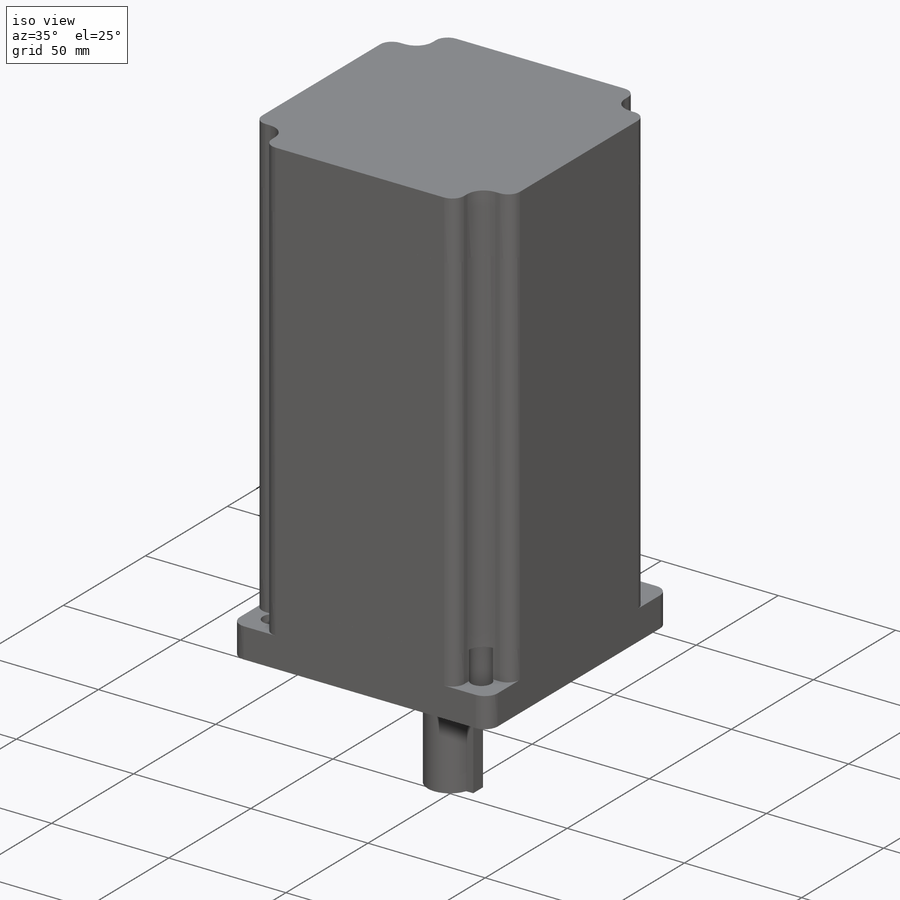
[diagram: iso view]
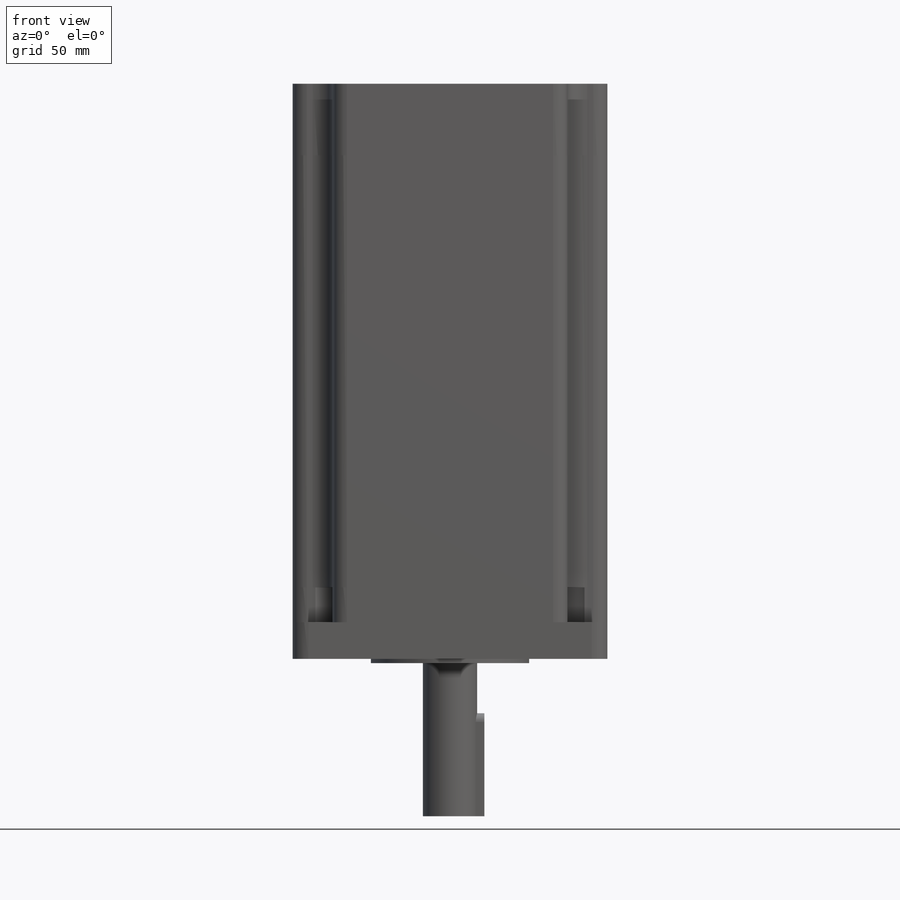
[diagram: front view]
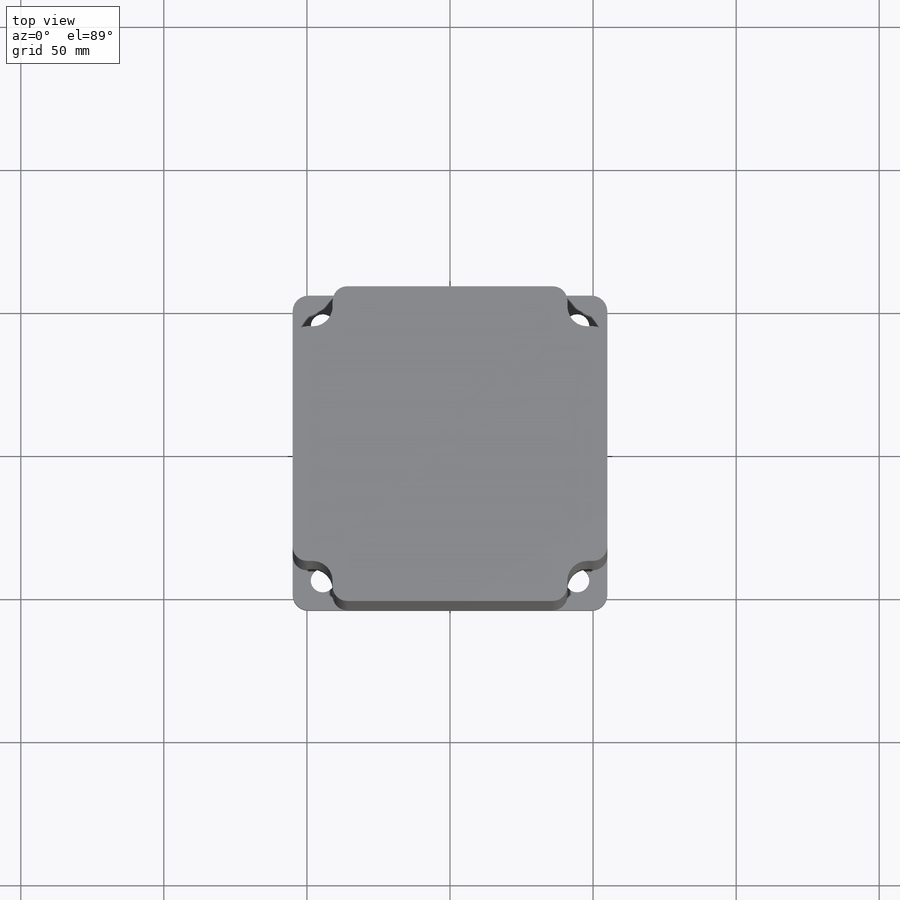
[diagram: top view]
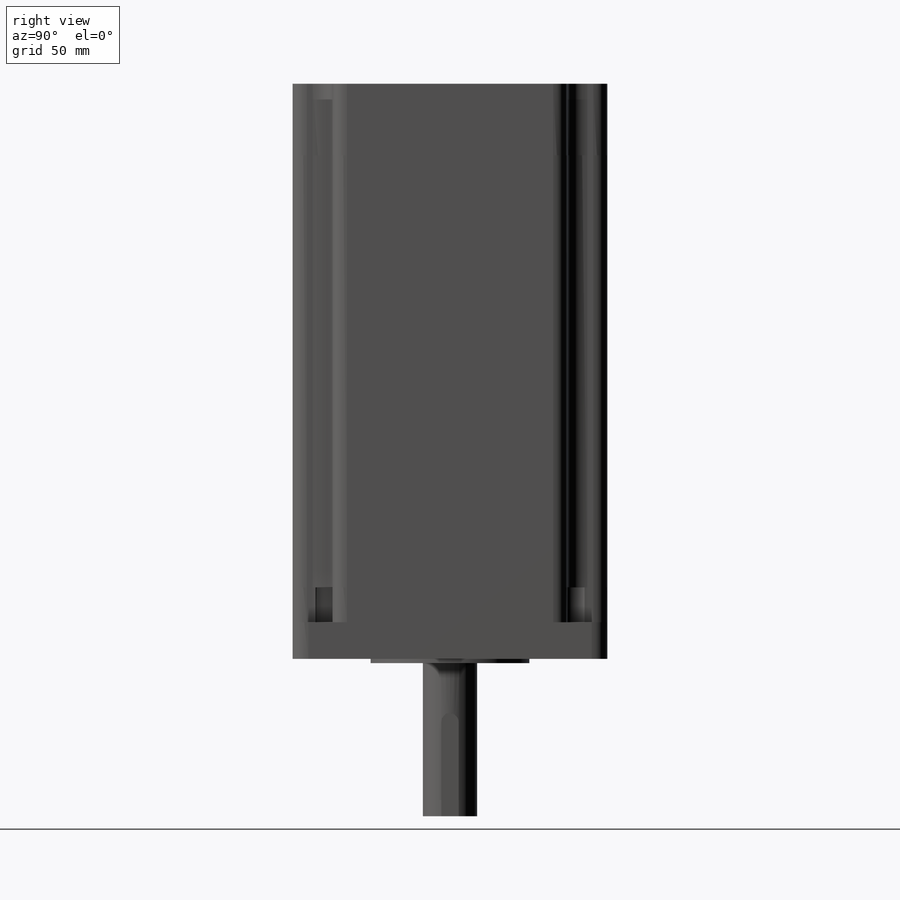
[diagram: right view]
SOLIDWORKS PART (.sldprt)
format: sldprt  version: not decoded by parser v0  size: 955,392 bytes
history: native  units: mm
features: sketch x11, extrude x6, cut_extrude x5, plane x4, pattern_circular x2, material x1 (+9 scaffold rows collapsed)
feature tree (38):
  scaffold x9  (default folders/planes/origin — collapsed)
  material  "材质 <未指定>"
  plane  "前视基准面"
  plane  "上视基准面"
  plane  "右视基准面"
  sketch  "草图1"  dims[D1=86.0mm D2=110.0mm]
  extrude  "凸台-拉伸1"  Depth=151mm
  sketch  "草图3"  dims[c1.D2=5.0mm c1.D1=4.5mm c1.D3=7.0mm c2.D1=~14.333333mm c2.D3=~14.248963mm c3.D1=82.0mm]
  cut_extrude  "切除-拉伸1"  [1 undecoded]
  pattern_circular  "阵列(圆周)1"  Count=4 Angle=90deg
  sketch  "草图4"  dims[D1=0.0mm]
  extrude  "凸台-拉伸2"  Depth=25mm
  sketch  "草图6"  dims[D2=5.5mm D1=110.0mm]
  extrude  "凸台-拉伸4"  Depth=25mm
  sketch  "草图8"
  cut_extrude  "切除-拉伸2"  Depth=12.8mm
  pattern_circular  "阵列(圆周)2"  Count=4 Angle=90deg
  sketch  "草图9"  dims[D1=55.5mm]
  extrude  "凸台-拉伸5"  Depth=1.5mm
  sketch  "草图15"  dims[D1=17.5mm]
  cut_extrude  "切除-拉伸7"  Depth=2mm
  sketch  "草图11"  dims[D1=19.0mm]
  extrude  "凸台-拉伸6"  Depth=55mm
  sketch  "草图12"  dims[D2=8.5mm D1=88.9mm D3=88.9mm]
  cut_extrude  "切除-拉伸3"  [1 undecoded]
  plane  "基准面1"
  sketch  "草图16"  dims[D1=6.0mm D2=33.0mm]
  cut_extrude  "切除-拉伸8"  Depth=2.5mm
  sketch  "草图17"  dims[D1=0.0mm]
  extrude  "凸台-拉伸7"  Depth=5mm
decode coverage: 21 of 24 modeling features carry decoded parameters
note: ~ marks probable driven/reference dimensions
note: 2 parameter values undecoded
note: suppression state not decoded; provenance and decode notes live in map.json
